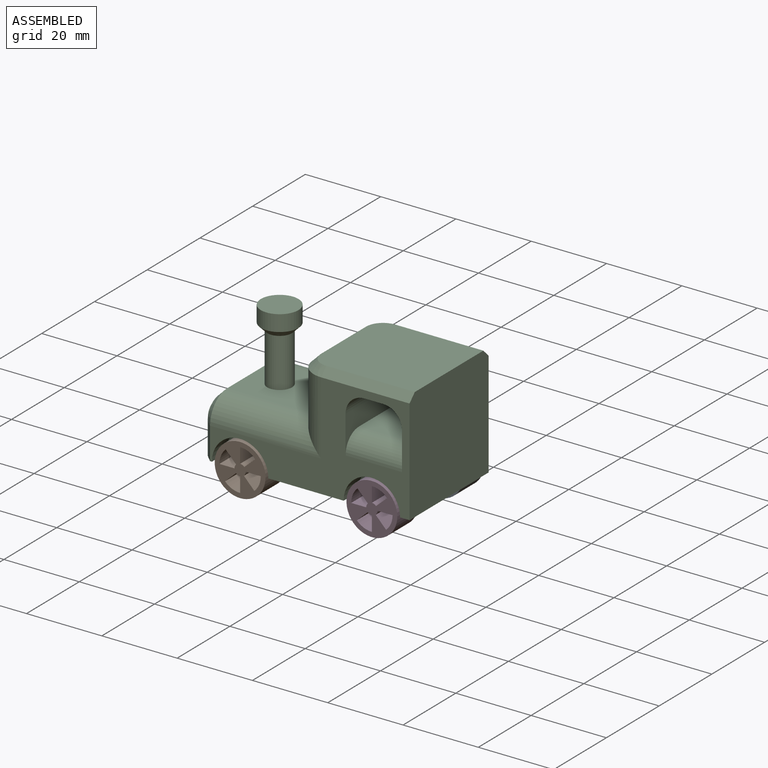
[diagram: assembled view]
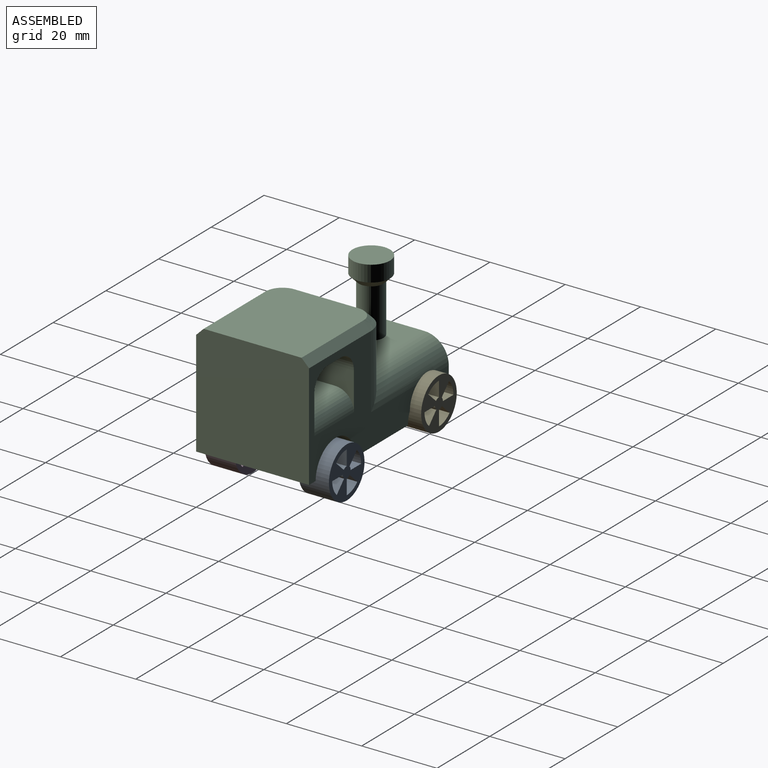
[diagram: assembled view, second angle]
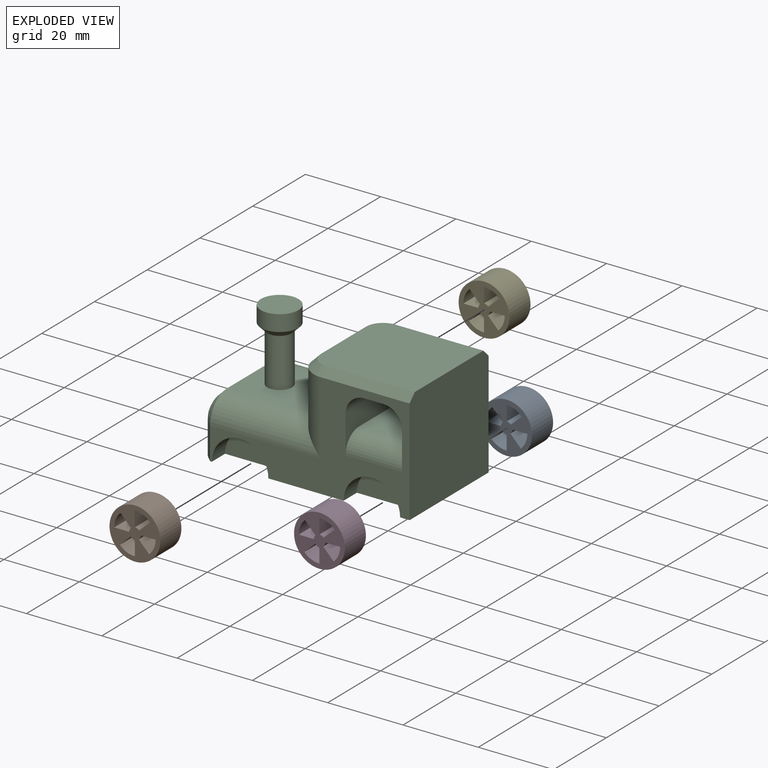
[diagram: exploded view]
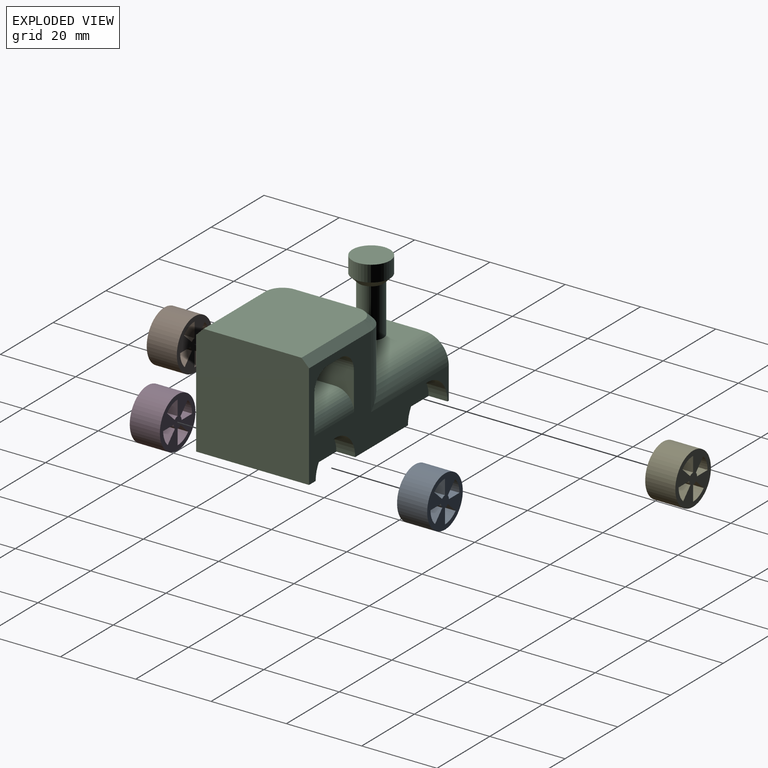
[diagram: exploded view, second angle]
ASSEMBLY  parts=5 mates=4
PART A: 19 faces, bbox 13.5x13.5x8 mm
  f0: plane 13.5x13.5mm, normal (0,0,1), area 97.6mm2, adj f2,f3,f4,f5,f6,f7,f8,f9
  f1: plane 13.5x13.5mm, normal (0,0,-1), area 97.6mm2, adj f2,f3,f4,f5,f6,f7,f8,f9
  f2: cylinder r=6.75mm len=13.5mm, axis (0,0,-1), area 339.3mm2, adj f0,f1
  f3: plane 8x2.92mm, normal (-0.68,-0.73,0), area 32mm2, adj f0,f1,f4,f6
  f4: cylinder r=5.5mm len=8mm, axis (0,0,-1), area 36.2mm2, adj f0,f1,f3,f5
  f5: plane 8x4mm, normal (1,0,0), area 32mm2, adj f0,f1,f4,f6
  f6: cylinder r=1.5mm len=8mm, axis (0,0,-1), area 10mm2, adj f0,f1,f3,f5
  f7: plane 8x2.89mm, normal (-0.72,0.69,0), area 32mm2, adj f0,f1,f8,f10
  f8: cylinder r=5.5mm len=8mm, axis (0,0,-1), area 35.2mm2, adj f0,f1,f7,f9
  f9: plane 8x4mm, normal (0,-1,0), area 32mm2, adj f0,f1,f8,f10
  f10: cylinder r=1.5mm len=8mm, axis (0,0,-1), area 9.4mm2, adj f0,f1,f7,f9
  f11: plane 8x2.92mm, normal (0.68,0.73,0), area 32mm2, adj f0,f1,f12,f14
  f12: cylinder r=5.5mm len=8mm, axis (0,0,-1), area 35.9mm2, adj f0,f1,f11,f13
  f13: plane 8x4mm, normal (-1,0,0), area 32mm2, adj f0,f1,f12,f14
  f14: cylinder r=1.5mm len=8mm, axis (0,0,-1), area 9.7mm2, adj f0,f1,f11,f13
  f15: cylinder r=1.5mm len=8mm, axis (0,0,-1), area 10mm2, adj f0,f1,f16,f18
  f16: plane 8x2.89mm, normal (0.72,-0.69,0), area 32mm2, adj f0,f1,f15,f17
  f17: cylinder r=5.5mm len=8mm, axis (0,0,-1), area 35.8mm2, adj f0,f1,f16,f18
  f18: plane 8x4mm, normal (0,1,0), area 32mm2, adj f0,f1,f15,f17
PART B: same geometry as A
PART C: 46 faces, bbox 56x30x34 mm
  f0: plane 55x30mm, normal (0,0,-1), area 1346mm2, adj f1,f2,f4,f5,f8,f9,f10,f11
  f1: plane 53x28mm, normal (0,-1,0), area 517.8mm2, adj f0,f5,f8,f10,f18,f19,f20,f25
  f2: plane 26x13mm, normal (-1,0,0), area 272.8mm2, adj f0,f20,f21,f22,f23,f24,f38,f40
  f3: plane 28x26mm, normal (0,0,1), area 719.3mm2, adj f5,f25,f26,f27,f28,f29
  f4: plane 53x28mm, normal (0,1,0), area 517.8mm2, adj f0,f5,f12,f14,f16,f17,f24,f29
  f5: plane 30x30mm, normal (1,0,0), area 896mm2, adj f0,f1,f3,f4,f25,f29
  f6: plane 17x13mm, normal (-1,0,0), area 221mm2, adj f7,f17,f19,f27
  f7: plane 23x17mm, normal (0,0,1), area 357.2mm2, adj f6,f16,f18,f22,f42
  f8: cylinder r=7.5mm len=15mm, axis (0,-1,0), area 117.8mm2, adj f0,f1,f9
  f9: plane 15x7.5mm, normal (0,-1,0), area 88.4mm2, adj f0,f8
  f10: cylinder r=7.5mm len=15mm, axis (0,-1,0), area 117.8mm2, adj f0,f1,f11
  f11: plane 15x7.5mm, normal (0,-1,0), area 88.4mm2, adj f0,f10
  f12: cylinder r=7.5mm len=15mm, axis (0,1,0), area 117.8mm2, adj f0,f4,f13
  f13: plane 15x7.5mm, normal (0,1,0), area 88.4mm2, adj f0,f12
  f14: cylinder r=7.5mm len=15mm, axis (0,1,0), area 117.8mm2, adj f0,f4,f15
  f15: plane 15x7.5mm, normal (0,1,0), area 88.4mm2, adj f0,f14
  f16: cylinder r=6.5mm len=29.5mm, axis (1,0,0), area 259mm2, adj f4,f7,f17,f23
  f17: cylinder r=6.5mm len=19.5mm, axis (0,0,1), area 156.8mm2, adj f4,f6,f16,f28
  f18: cylinder r=6.5mm len=29.5mm, axis (1,0,0), area 259mm2, adj f1,f7,f19,f21
  f19: cylinder r=6.5mm len=19.5mm, axis (0,0,1), area 156.8mm2, adj f1,f6,f18,f26
  f20: plane 8.5x2mm, normal (-0.71,-0.71,0), area 24mm2, adj f0,f1,f2,f21
  f21: cone r=4.5mm half-angle=45deg, axis (1,0,0), area 24.4mm2, adj f2,f18,f20,f22
  f22: plane 17x2mm, normal (-0.71,0,0.71), area 48.1mm2, adj f2,f7,f21,f23
  f23: cone r=4.5mm half-angle=45deg, axis (1,0,0), area 24.4mm2, adj f2,f16,f22,f24
  f24: plane 8.5x2mm, normal (-0.71,0.71,0), area 24mm2, adj f0,f2,f4,f23
  f25: plane 23.5x2mm, normal (0,-0.71,0.71), area 66.5mm2, adj f1,f3,f5,f26
  f26: cone r=4.5mm half-angle=45deg, axis (0,0,-1), area 24.4mm2, adj f3,f19,f25,f27
  f27: plane 17x2mm, normal (-0.71,0,0.71), area 48.1mm2, adj f3,f6,f26,f28
  f28: cone r=4.5mm half-angle=45deg, axis (0,0,-1), area 24.4mm2, adj f3,f17,f27,f29
  f29: plane 23.5x2mm, normal (0,0.71,0.71), area 66.5mm2, adj f3,f4,f5,f28
  f30: plane 30x10mm, normal (-1,0,0), area 160.7mm2, adj f1,f4,f31,f34,f35,f37
  f31: plane 20x15mm, normal (0,0,1), area 300mm2, adj f30,f32,f34,f35
  f32: plane 30x10mm, normal (1,0,0), area 160.7mm2, adj f1,f4,f31,f34,f35,f36
  f33: plane 30x5mm, normal (0,0,-1), area 150mm2, adj f1,f4,f36,f37
  f34: cylinder r=5mm len=15mm, axis (-1,0,0), area 117.8mm2, adj f1,f30,f31,f32
  f35: cylinder r=5mm len=15mm, axis (1,0,0), area 117.8mm2, adj f4,f30,f31,f32
  f36: cylinder r=5mm len=30mm, axis (0,-1,0), area 235.6mm2, adj f1,f4,f32,f33
  f37: cylinder r=5mm len=30mm, axis (0,1,0), area 235.6mm2, adj f1,f4,f30,f33
  f38: cylinder r=3mm len=6mm, axis (1,0,0), area 18.8mm2, adj f2,f39
  f39: plane 6x6mm, normal (-1,0,0), area 28.3mm2, adj f38
  f40: cylinder r=3mm len=6mm, axis (1,0,0), area 18.8mm2, adj f2,f41
  f41: plane 6x6mm, normal (-1,0,0), area 28.3mm2, adj f40
  f42: cylinder r=3.28mm len=13mm, axis (0,0,-1), area 268mm2, adj f7,f45
  f43: cylinder r=5mm len=10mm, axis (0,0,-1), area 134.5mm2, adj f44,f45
  f44: plane 10x10mm, normal (0,0,1), area 78.5mm2, adj f43
  f45: cone r=5.28mm half-angle=45deg, axis (0,0,1), area 63.3mm2, adj f42,f43
PART D: same geometry as A
PART E: same geometry as A
PLACE A rot(axis=(-1,0,0),90deg) t=(20.41,-1.71,1.53)mm
PLACE B rot(axis=(-1,0,0),90deg) t=(-14.59,-26.71,1.53)mm
PLACE C rot(axis=(0.44,-0.82,0.38),0deg) t=(2.91,-11.71,1.53)mm
PLACE D rot(axis=(-1,0,0),90deg) t=(20.41,-26.71,1.53)mm
PLACE E rot(axis=(-1,0,0),90deg) t=(-14.58,-1.71,4.71)mm
MATE fastened A.f2 <-> C.f8  axis (0,-1,0) through (20.41,-1.71,1.53)mm
MATE fastened D.f2 <-> C.f8  axis (0,-1,0) through (20.41,-26.71,1.53)mm
MATE fastened E.f1 <-> C.f15  axis (0,-1,0) through (-14.59,-1.71,4.71)mm
MATE fastened C.f10 <-> B.f4  axis (0,-1,0) through (-14.59,-26.71,1.53)mm
